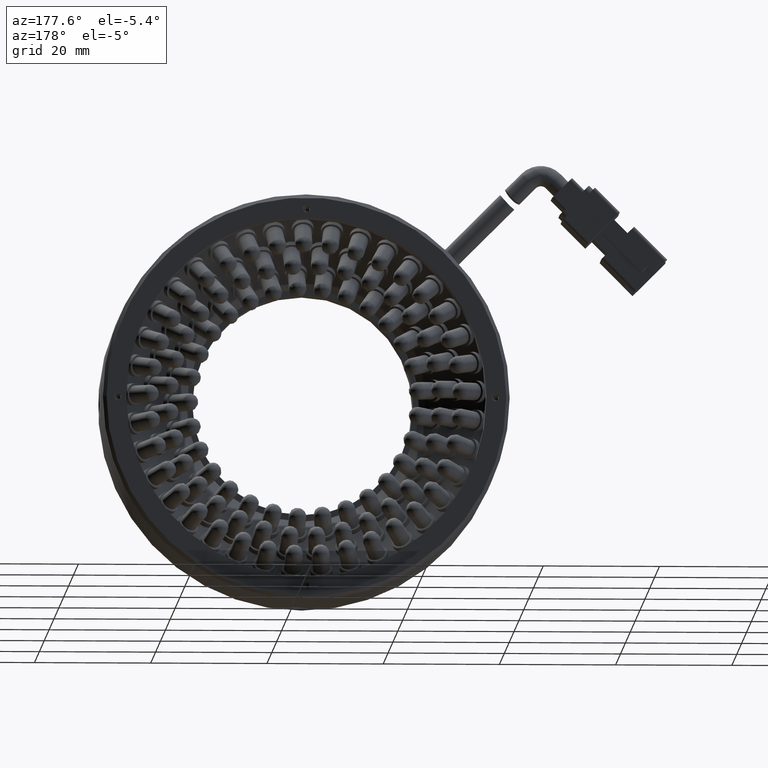
[diagram: clean part render]
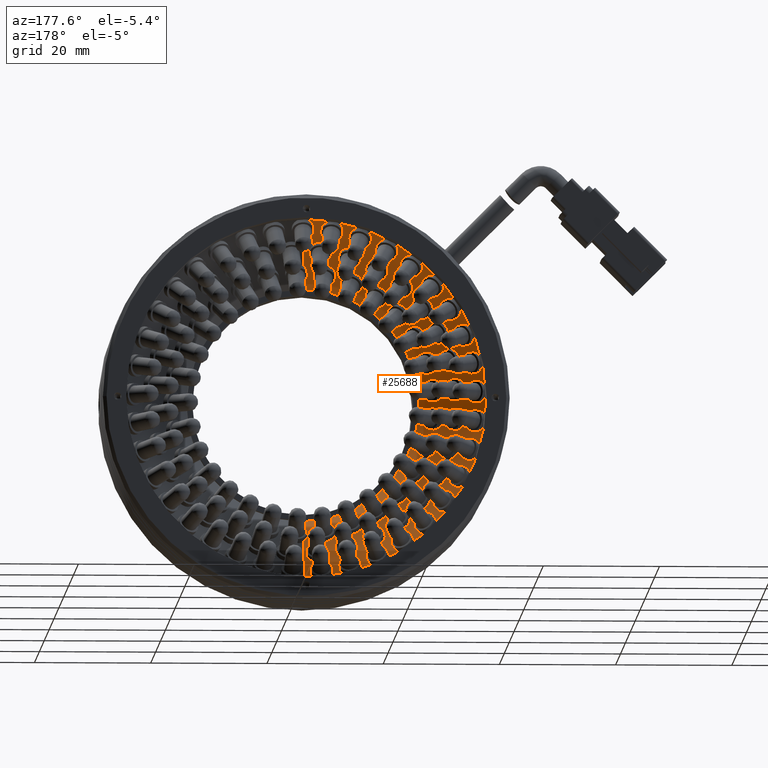
[diagram: same view with one face highlighted and labeled with its STEP entity id]
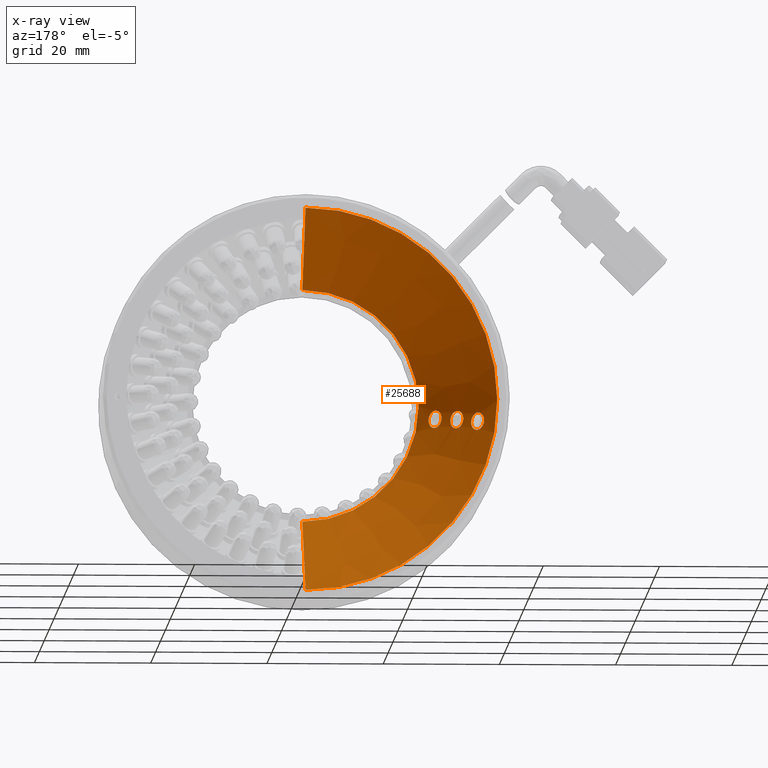
[diagram: x-ray of the same camera — body ghosted, the highlighted face saturated]
A machine part, auxiliary view. The second image highlights one B-rep face of the part: STEP entity #25688.
The next image is the same camera in x-ray: the body ghosted, the highlighted face saturated — about 0% of this face is hidden behind the body in this view.
In plain terms, the highlighted conical surface has half-angle 45 deg.
Its self-contained STEP definition (entity closure, byte-faithful):
#128 = CARTESIAN_POINT ( 'NONE',  ( -28.01908326367941600, 5.874886798443166700, -2.501664204160788600 ) ) ;
#412 = CARTESIAN_POINT ( 'NONE',  ( -29.42814202739572600, 7.200999147125463300, -1.467076150657324200 ) ) ;
#485 = EDGE_CURVE ( 'NONE', #35427, #45216, #60642, .T. ) ;
#1360 = CIRCLE ( 'NONE', #12186, 33.00000000000000000 ) ;
#1465 = CARTESIAN_POINT ( 'NONE',  ( -29.60603472380911000, 7.646457897672905600, -4.083056202841649300 ) ) ;
#1751 = CARTESIAN_POINT ( 'NONE',  ( -28.05137181699154100, 6.043878077482676600, -3.642280062222721200 ) ) ;
#2243 = ORIENTED_EDGE ( 'NONE', *, *, #485, .T. ) ;
#2247 = DIRECTION ( 'NONE',  ( 0.0000000000000000000, -1.051347561198065000E-016, -1.000000000000000000 ) ) ;
#2879 = CARTESIAN_POINT ( 'NONE',  ( -33.44336522947413200, 11.42755711377953500, -3.941097749958742700 ) ) ;
#2887 = CARTESIAN_POINT ( 'NONE',  ( -31.57840938209541200, 9.437869162553740300, -2.710162073757857600 ) ) ;
#3053 = CARTESIAN_POINT ( 'NONE',  ( -25.25889069463905300, 3.341963317403056500, -3.990397044369723600 ) ) ;
#3162 = CARTESIAN_POINT ( 'NONE',  ( -31.89744508146140900, 10.02246797971766900, -4.801698555922583500 ) ) ;
#3170 = CARTESIAN_POINT ( 'NONE',  ( -33.16659305451251100, 10.98355553334837100, -2.268492541284835400 ) ) ;
#3271 = CARTESIAN_POINT ( 'NONE',  ( -24.38760917455244500, 2.241887513611481500, -2.301560160456393800 ) ) ;
#3539 = CARTESIAN_POINT ( 'NONE',  ( -25.76494137189920500, 3.521332085800508200, -1.047149577888178300 ) ) ;
#5622 = VERTEX_POINT ( 'NONE', #74218 ) ;
#6875 = CARTESIAN_POINT ( 'NONE',  ( -28.10567726537878000, 5.935465366437992600, -2.225339834273584800 ) ) ;
#7163 = CARTESIAN_POINT ( 'NONE',  ( -29.61538702772243800, 7.394853228784978000, -1.589005757616505300 ) ) ;
#7319 = CARTESIAN_POINT ( 'NONE',  ( -2.716071020391490600, 13.44869269134615100, -33.00000000000000700 ) ) ;
#7429 = EDGE_CURVE ( 'NONE', #48836, #85072, #9993, .T. ) ;
#8190 = CARTESIAN_POINT ( 'NONE',  ( -29.20978600588955500, 7.295822147131579200, -4.342854923332189400 ) ) ;
#8493 = CARTESIAN_POINT ( 'NONE',  ( -27.95332671491391400, 5.873202266445422200, -3.086363361184057300 ) ) ;
#9483 = CARTESIAN_POINT ( 'NONE',  ( -26.48008095919268700, 4.364661294156624300, -2.693476409665842100 ) ) ;
#9580 = CARTESIAN_POINT ( 'NONE',  ( -33.33960190663746200, 11.35982591810994800, -4.207730450116234700 ) ) ;
#9591 = CARTESIAN_POINT ( 'NONE',  ( -31.71106438712465400, 9.548639603335534100, -2.470347630656525100 ) ) ;
#9776 = CARTESIAN_POINT ( 'NONE',  ( -25.05518007358076800, 3.133054538943564000, -3.942655122749678200 ) ) ;
#9877 = CARTESIAN_POINT ( 'NONE',  ( -31.73165729731529400, 9.834024566112598000, -4.647093995641291100 ) ) ;
#9887 = CARTESIAN_POINT ( 'NONE',  ( -33.35857245996034200, 11.19599761252939500, -2.539935526342817200 ) ) ;
#9983 = CARTESIAN_POINT ( 'NONE',  ( -24.44921119881551200, 2.274871629960953300, -2.015280307594234300 ) ) ;
#9993 = B_SPLINE_CURVE_WITH_KNOTS ( 'NONE', 3,
 ( #21358, #41328, #81494, #68224, #28154, #75001, #34841, #81766, #41611, #1465, #48339, #8190, #55088, #14930, #61795, #21656, #68538, #28434, #75289, #35129, #82069, #41899, #1751, #48623, #8493, #55372 ),
 .UNSPECIFIED., .F., .F.,
 ( 4, 2, 2, 2, 2, 2, 2, 2, 2, 2, 2, 2, 4 ),
 ( 0.0000000000000000000, 0.0002930740204777339800, 0.0005861480409554679500, 0.0008792220614332018700, 0.001172296081910935900, 0.001758444122866402200, 0.002344592163821868300, 0.002637666184299605400, 0.002930740204777342500, 0.003223814225255079500, 0.003516888245732816600, 0.004103036286688296400, 0.004689184327643776600 ),
 .UNSPECIFIED. ) ;
#10271 = CARTESIAN_POINT ( 'NONE',  ( -25.95716323115203700, 3.718217815809340600, -1.150486229931398500 ) ) ;
#10829 = VERTEX_POINT ( 'NONE', #70954 ) ;
#11757 = ORIENTED_EDGE ( 'NONE', *, *, #7429, .T. ) ;
#11831 = CARTESIAN_POINT ( 'NONE',  ( -27.96455778070088300, 5.861903715666897200, -2.888807865044639400 ) ) ;
#12186 = AXIS2_PLACEMENT_3D ( 'NONE', #20433, #67296, #27198 ) ;
#12411 = CARTESIAN_POINT ( 'NONE',  ( -2.716071020391494600, 13.44869269134615100, 33.00000000000000700 ) ) ;
#13617 = CARTESIAN_POINT ( 'NONE',  ( -28.22560439056324800, 6.034543310092948000, -1.976512491367817100 ) ) ;
#13896 = CARTESIAN_POINT ( 'NONE',  ( -29.77883539690149200, 7.568504325954476600, -1.759373894676338600 ) ) ;
#14930 = CARTESIAN_POINT ( 'NONE',  ( -28.85706066666757200, 6.954426081459327900, -4.382088041531965000 ) ) ;
#14952 = CIRCLE ( 'NONE', #23549, 20.00000000000001100 ) ;
#16174 = CARTESIAN_POINT ( 'NONE',  ( -26.41559340952226600, 4.334579906286407400, -2.979439700170547900 ) ) ;
#16284 = CARTESIAN_POINT ( 'NONE',  ( -33.20044632161772600, 11.25559628731189900, -4.446791202640015200 ) ) ;
#16296 = CARTESIAN_POINT ( 'NONE',  ( -31.98914546368681400, 9.800598456485412100, -2.151396479206739700 ) ) ;
#16468 = CARTESIAN_POINT ( 'NONE',  ( -24.86807297406931400, 2.931022768088019900, -3.839877749889348400 ) ) ;
#16569 = CARTESIAN_POINT ( 'NONE',  ( -31.54927324431512000, 9.611928553604162300, -4.376767390991610700 ) ) ;
#16574 = CARTESIAN_POINT ( 'NONE',  ( -33.51961998943672700, 11.40408856987448200, -3.067409852924995100 ) ) ;
#16665 = CARTESIAN_POINT ( 'NONE',  ( -24.54665320837648300, 2.348978330592371500, -1.747944095574627300 ) ) ;
#16913 = VECTOR ( 'NONE', #49844, 999.9999999999998900 ) ;
#16975 = CARTESIAN_POINT ( 'NONE',  ( -26.13028914534190500, 3.899245238396602100, -1.305918350379036400 ) ) ;
#18986 = LINE ( 'NONE', #23444, #16913 ) ;
#20346 = CARTESIAN_POINT ( 'NONE',  ( -28.42767393724751600, 6.215501190854329400, -1.692036362559110400 ) ) ;
#20433 = CARTESIAN_POINT ( 'NONE',  ( -2.716071020391494600, 13.44869269134615100, 0.0000000000000000000 ) ) ;
#20628 = CARTESIAN_POINT ( 'NONE',  ( -29.99248696055222400, 7.807880282528584500, -2.133910360436776200 ) ) ;
#20782 = EDGE_CURVE ( 'NONE', #10829, #56791, #75650, .T. ) ;
#21358 = CARTESIAN_POINT ( 'NONE',  ( -30.09223288798401100, 7.976850201527462000, -2.888808976850003600 ) ) ;
#21656 = CARTESIAN_POINT ( 'NONE',  ( -28.65329934544047300, 6.745579915739334400, -4.334342406142083000 ) ) ;
#21800 = EDGE_CURVE ( 'NONE', #39021, #38356, #18986, .T. ) ;
#22928 = CARTESIAN_POINT ( 'NONE',  ( -26.31197774011261000, 4.266679721737610000, -3.246102452109251900 ) ) ;
#23041 = CARTESIAN_POINT ( 'NONE',  ( -32.91001747395823400, 11.01606169976747300, -4.764307066195859100 ) ) ;
#23051 = CARTESIAN_POINT ( 'NONE',  ( -32.39090638013429000, 10.18833984316764200, -1.962356982055978700 ) ) ;
#23232 = CARTESIAN_POINT ( 'NONE',  ( -24.70279705031742900, 2.742091085321706900, -3.685301890713614800 ) ) ;
#23333 = CARTESIAN_POINT ( 'NONE',  ( -31.40127886739067300, 9.390700894051661900, -3.850813661478162100 ) ) ;
#23341 = CARTESIAN_POINT ( 'NONE',  ( -33.52646239689207900, 11.45267830740728400, -3.459321798819248200 ) ) ;
#23433 = CARTESIAN_POINT ( 'NONE',  ( -24.67742984688036900, 2.461643009922632100, -1.507956543181124600 ) ) ;
#23444 = CARTESIAN_POINT ( 'NONE',  ( -2.716071020391494600, 13.44869269134614600, 33.00000000000000000 ) ) ;
#23549 = AXIS2_PLACEMENT_3D ( 'NONE', #33494, #80481, #40269 ) ;
#23723 = CARTESIAN_POINT ( 'NONE',  ( -26.32452407231837600, 4.109419223406105100, -1.577599851970052900 ) ) ;
#24568 = B_SPLINE_CURVE_WITH_KNOTS ( 'NONE', 3,
 ( #69653, #29556, #76424, #36269, #83169, #43025, #2887, #49743, #9591, #56495, #16296, #63246, #23051, #69941, #29830, #76713, #36543, #83445, #43329, #3170, #50025, #9887, #56793, #16574, #63526, #23341 ),
 .UNSPECIFIED., .F., .F.,
 ( 4, 2, 2, 2, 2, 2, 2, 2, 2, 2, 2, 2, 4 ),
 ( 0.004689083495144353600, 0.004982151444206462200, 0.005275219393268570700, 0.005568287342330679300, 0.005861355291392787900, 0.006447491189517016300, 0.007033627087641245600, 0.007326695036703358500, 0.007619762985765471400, 0.007912830934827582600, 0.008205898883889695500, 0.008792034782013923000, 0.009378170680138147100 ),
 .UNSPECIFIED. ) ;
#25688 = ADVANCED_FACE ( 'NONE', ( #67636, #34064, #51908, #85441 ), #41418, .F. ) ;
#27128 = CARTESIAN_POINT ( 'NONE',  ( -28.80923263624179100, 6.580914022070942300, -1.430618923767120300 ) ) ;
#27198 = DIRECTION ( 'NONE',  ( 0.0000000000000000000, -1.051347561198065000E-016, -1.000000000000000000 ) ) ;
#27401 = CARTESIAN_POINT ( 'NONE',  ( -30.10260110217440800, 7.966419687030017000, -2.691158401637991000 ) ) ;
#28154 = CARTESIAN_POINT ( 'NONE',  ( -30.01050968042187300, 7.950321185872224000, -3.370755326970311700 ) ) ;
#28394 = EDGE_LOOP ( 'NONE', ( #56576, #71348 ) ) ;
#28434 = CARTESIAN_POINT ( 'NONE',  ( -28.46588625501023300, 6.543867905448771600, -4.231536590790422100 ) ) ;
#28626 = VERTEX_POINT ( 'NONE', #31376 ) ;
#29546 = CARTESIAN_POINT ( 'NONE',  ( -33.52646239689207900, 11.45267830740728400, -3.459321798819248200 ) ) ;
#29556 = CARTESIAN_POINT ( 'NONE',  ( -31.40393389580794200, 9.332550256576315200, -3.360580407584973900 ) ) ;
#29718 = CARTESIAN_POINT ( 'NONE',  ( -26.17263168020944500, 4.162627961578628800, -3.485153052648091200 ) ) ;
#29824 = CARTESIAN_POINT ( 'NONE',  ( -32.49756335515410700, 10.63908910240122700, -4.952098552430085100 ) ) ;
#29830 = CARTESIAN_POINT ( 'NONE',  ( -32.66867060039835000, 10.46612088174427100, -1.971797698824531600 ) ) ;
#29931 = CARTESIAN_POINT ( 'NONE',  ( -24.36981795031816800, 2.245991863775949900, -2.497497769189368700 ) ) ;
#29995 = CARTESIAN_POINT ( 'NONE',  ( -24.52116903816339600, 2.519247986775215800, -3.415007542213039500 ) ) ;
#30098 = CARTESIAN_POINT ( 'NONE',  ( -31.39802087014657100, 9.338503133164820700, -3.459320768641271500 ) ) ;
#30197 = CARTESIAN_POINT ( 'NONE',  ( -24.95243994932467800, 2.716665163038003400, -1.188735715504184400 ) ) ;
#30477 = CARTESIAN_POINT ( 'NONE',  ( -26.48899940382902000, 4.314010037575357600, -2.105378886074647000 ) ) ;
#30633 = B_SPLINE_CURVE_WITH_KNOTS ( 'NONE', 3,
 ( #42916, #49638, #9483, #56390, #16174, #63131, #22928, #69828, #29718, #76605, #36444, #83334, #43206, #3053, #49912, #9776, #56675, #16468, #63417, #23232, #70111, #29995, #76889, #36732, #83625, #43485 ),
 .UNSPECIFIED., .F., .F.,
 ( 4, 2, 2, 2, 2, 2, 2, 2, 2, 2, 2, 2, 4 ),
 ( 0.0000000000000000000, 0.0002930838837571808000, 0.0005861677675143616000, 0.0008792516512715425000, 0.001172335535028723200, 0.001758503302543091700, 0.002344671070057459400, 0.002637754953814647500, 0.002930838837571836000, 0.003223922721329023600, 0.003517006605086212100, 0.004103174372600587800, 0.004689342140114963900 ),
 .UNSPECIFIED. ) ;
#31376 = CARTESIAN_POINT ( 'NONE',  ( -26.49751349877059100, 4.360917785284624600, -2.497499267413789700 ) ) ;
#32858 = ORIENTED_EDGE ( 'NONE', *, *, #48508, .T. ) ;
#33494 = CARTESIAN_POINT ( 'NONE',  ( -2.716071020391494600, 0.4486926913459983200, 0.0000000000000000000 ) ) ;
#33801 = CARTESIAN_POINT ( 'NONE',  ( -29.15756188453504200, 6.926740690362270100, -1.390899217639858200 ) ) ;
#34064 = FACE_BOUND ( 'NONE', #76257, .T. ) ;
#34841 = CARTESIAN_POINT ( 'NONE',  ( -29.90730625863897200, 7.882010973099663300, -3.637463736922589100 ) ) ;
#35129 = CARTESIAN_POINT ( 'NONE',  ( -28.30007909762012000, 6.355460051159751000, -4.076902001487286300 ) ) ;
#35427 = VERTEX_POINT ( 'NONE', #83237 ) ;
#35591 = ORIENTED_EDGE ( 'NONE', *, *, #60557, .F. ) ;
#36269 = CARTESIAN_POINT ( 'NONE',  ( -31.45389171925155800, 9.350114011872610900, -3.072333513818881600 ) ) ;
#36444 = CARTESIAN_POINT ( 'NONE',  ( -25.88142976755217400, 3.923880228889425200, -3.802595145940676600 ) ) ;
#36534 = CARTESIAN_POINT ( 'NONE',  ( -32.21867753442303700, 10.36244029600416500, -4.942526104877815700 ) ) ;
#36543 = CARTESIAN_POINT ( 'NONE',  ( -32.86884557506049700, 10.67025964805048200, -2.038232096089959400 ) ) ;
#36732 = CARTESIAN_POINT ( 'NONE',  ( -24.37373605373384000, 2.297522132319070200, -2.889108068951709900 ) ) ;
#36932 = CARTESIAN_POINT ( 'NONE',  ( -25.35197058306175000, 3.106646915686858400, -0.9994896512752514700 ) ) ;
#37226 = CARTESIAN_POINT ( 'NONE',  ( -26.49751349877059100, 4.360917785284624600, -2.497499267413789700 ) ) ;
#38356 = VERTEX_POINT ( 'NONE', #12411 ) ;
#39021 = VERTEX_POINT ( 'NONE', #40404 ) ;
#39283 = EDGE_CURVE ( 'NONE', #56791, #10829, #24568, .T. ) ;
#40269 = DIRECTION ( 'NONE',  ( 0.0000000000000000000, 8.673617379884030500E-017, -1.000000000000000000 ) ) ;
#40284 = CARTESIAN_POINT ( 'NONE',  ( -27.98230676668823900, 5.857841108231871100, -2.692872088767890300 ) ) ;
#40404 = CARTESIAN_POINT ( 'NONE',  ( -2.716071020391494600, 0.4486926913459983200, 20.00000000000001100 ) ) ;
#40579 = CARTESIAN_POINT ( 'NONE',  ( -29.36273290535496400, 7.134166090478451800, -1.438798172445934400 ) ) ;
#41328 = CARTESIAN_POINT ( 'NONE',  ( -30.08704878579663200, 7.982065453838874400, -2.987634170897629300 ) ) ;
#41418 = CONICAL_SURFACE ( 'NONE', #57403, 33.00000000000000000, 0.7853981633974426200 ) ;
#41611 = CARTESIAN_POINT ( 'NONE',  ( -29.76852888598568500, 7.777388163801131100, -3.876581687967640900 ) ) ;
#41720 = CARTESIAN_POINT ( 'NONE',  ( -24.36981795031816800, 2.245991863775949900, -2.497497769189368700 ) ) ;
#41899 = CARTESIAN_POINT ( 'NONE',  ( -28.11756223280062300, 6.133512187233510100, -3.806514765392610100 ) ) ;
#42403 = DIRECTION ( 'NONE',  ( 0.0000000000000000000, -1.000000000000000000, 0.0000000000000000000 ) ) ;
#42870 = VECTOR ( 'NONE', #81690, 999.9999999999998900 ) ;
#42916 = CARTESIAN_POINT ( 'NONE',  ( -26.49751349877059100, 4.360917785284624600, -2.497499267413789700 ) ) ;
#43020 = CARTESIAN_POINT ( 'NONE',  ( -33.46980707908835500, 11.44185710167179200, -3.846218073052764600 ) ) ;
#43025 = CARTESIAN_POINT ( 'NONE',  ( -31.54169450870904300, 9.409463013717223500, -2.796130526269787500 ) ) ;
#43206 = CARTESIAN_POINT ( 'NONE',  ( -25.46800741940171900, 3.547881985770746200, -3.990304007584768000 ) ) ;
#43271 = CARTESIAN_POINT ( 'NONE',  ( -2.716071020391490600, 13.44869269134614600, -33.00000000000000000 ) ) ;
#43319 = CARTESIAN_POINT ( 'NONE',  ( -32.02061594168689900, 10.15617139596161200, -4.876336150010611300 ) ) ;
#43329 = CARTESIAN_POINT ( 'NONE',  ( -33.05541550518000100, 10.86479568739612700, -2.160092470270941000 ) ) ;
#43485 = CARTESIAN_POINT ( 'NONE',  ( -24.36981795031816800, 2.245991863775949900, -2.497497769189368700 ) ) ;
#43700 = CARTESIAN_POINT ( 'NONE',  ( -25.62969088126097700, 3.384509009095337400, -1.008936631138241900 ) ) ;
#43843 = CARTESIAN_POINT ( 'NONE',  ( -2.716071020391494600, 13.44869269134614600, 0.0000000000000000000 ) ) ;
#45216 = VERTEX_POINT ( 'NONE', #7319 ) ;
#46349 = ORIENTED_EDGE ( 'NONE', *, *, #39283, .T. ) ;
#47044 = CARTESIAN_POINT ( 'NONE',  ( -28.04409788792290600, 5.890628835382852200, -2.406622325281271700 ) ) ;
#47254 = EDGE_CURVE ( 'NONE', #38356, #5622, #59508, .T. ) ;
#47334 = CARTESIAN_POINT ( 'NONE',  ( -29.55456539434742100, 7.331431839673603800, -1.542087243733474300 ) ) ;
#47845 = ORIENTED_EDGE ( 'NONE', *, *, #82554, .T. ) ;
#48339 = CARTESIAN_POINT ( 'NONE',  ( -29.47841531595618000, 7.537529216597238100, -4.194157209696227200 ) ) ;
#48508 = EDGE_CURVE ( 'NONE', #39021, #35427, #14952, .T. ) ;
#48623 = CARTESIAN_POINT ( 'NONE',  ( -27.96884440991518200, 5.913054303930654700, -3.280442657478248600 ) ) ;
#48836 = VERTEX_POINT ( 'NONE', #50749 ) ;
#49638 = CARTESIAN_POINT ( 'NONE',  ( -26.49235374372642900, 4.366108627309952100, -2.596330527924044100 ) ) ;
#49738 = CARTESIAN_POINT ( 'NONE',  ( -33.37811794681601900, 11.38641956513504800, -4.121970691507270200 ) ) ;
#49743 = CARTESIAN_POINT ( 'NONE',  ( -31.66288662371357500, 9.507258990095312600, -2.547418979825386600 ) ) ;
#49844 = DIRECTION ( 'NONE',  ( 0.0000000000000000000, 0.7071067811865515700, 0.7071067811865435800 ) ) ;
#49912 = CARTESIAN_POINT ( 'NONE',  ( -25.18893267097128700, 3.271389174592974400, -3.980705248420320300 ) ) ;
#50014 = CARTESIAN_POINT ( 'NONE',  ( -31.83871216234416900, 9.956935738828168100, -4.755016390516956000 ) ) ;
#50025 = CARTESIAN_POINT ( 'NONE',  ( -33.21794150139388100, 11.03938388139246400, -2.330372589065691900 ) ) ;
#50124 = CARTESIAN_POINT ( 'NONE',  ( -24.42429051912432300, 2.259032136276597000, -2.110335868094430200 ) ) ;
#50400 = CARTESIAN_POINT ( 'NONE',  ( -25.83045850150775600, 3.588059454752991600, -1.075440272904947700 ) ) ;
#50749 = CARTESIAN_POINT ( 'NONE',  ( -30.09223288798401100, 7.976850201527462000, -2.888808976850003600 ) ) ;
#51908 = FACE_BOUND ( 'NONE', #70259, .T. ) ;
#52222 = EDGE_CURVE ( 'NONE', #64064, #28626, #62054, .T. ) ;
#53779 = CARTESIAN_POINT ( 'NONE',  ( -28.14197251523002300, 5.964297069803323300, -2.139332251036381000 ) ) ;
#54073 = CARTESIAN_POINT ( 'NONE',  ( -29.72715424512901400, 7.513012766685523800, -1.697462051795112900 ) ) ;
#54615 = AXIS2_PLACEMENT_3D ( 'NONE', #82536, #42403, #2247 ) ;
#55088 = CARTESIAN_POINT ( 'NONE',  ( -29.06601132826993000, 7.160498173152793900, -4.381977731557803700 ) ) ;
#55372 = CARTESIAN_POINT ( 'NONE',  ( -27.96455778070088300, 5.861903715666897200, -2.888807865044639400 ) ) ;
#56083 = CARTESIAN_POINT ( 'NONE',  ( -31.39802087014657100, 9.338503133164820700, -3.459320768641271500 ) ) ;
#56390 = CARTESIAN_POINT ( 'NONE',  ( -26.44189801283231500, 4.349027118801107200, -2.884536115081206100 ) ) ;
#56489 = CARTESIAN_POINT ( 'NONE',  ( -33.25098324583355200, 11.29460363359458500, -4.369993061851015900 ) ) ;
#56495 = CARTESIAN_POINT ( 'NONE',  ( -31.86659738957584100, 9.686567416290762000, -2.263077709976834200 ) ) ;
#56576 = ORIENTED_EDGE ( 'NONE', *, *, #69672, .T. ) ;
#56590 = CARTESIAN_POINT ( 'NONE',  ( -24.37547834544265200, 2.240297365366501000, -2.398721525198301800 ) ) ;
#56675 = CARTESIAN_POINT ( 'NONE',  ( -24.99101462764855000, 3.064966248454909200, -3.914511835946361500 ) ) ;
#56783 = CARTESIAN_POINT ( 'NONE',  ( -31.68261638677215300, 9.775874013344935800, -4.585481780741812200 ) ) ;
#56791 = VERTEX_POINT ( 'NONE', #56083 ) ;
#56793 = CARTESIAN_POINT ( 'NONE',  ( -33.42970014969087300, 11.28068057494742000, -2.704729350631603200 ) ) ;
#56896 = CARTESIAN_POINT ( 'NONE',  ( -24.51052604647137700, 2.319976694560864000, -1.833969394027679100 ) ) ;
#57150 = CARTESIAN_POINT ( 'NONE',  ( -26.01815233225255900, 3.781463538590523800, -1.197422366615450200 ) ) ;
#57403 = AXIS2_PLACEMENT_3D ( 'NONE', #43843, #63750, #70744 ) ;
#59508 = CIRCLE ( 'NONE', #54615, 33.00000000000000000 ) ;
#60473 = CARTESIAN_POINT ( 'NONE',  ( -28.27335295307484100, 6.076356030270624800, -1.899405503200367800 ) ) ;
#60557 = EDGE_CURVE ( 'NONE', #5622, #45216, #1360, .T. ) ;
#60642 = LINE ( 'NONE', #43271, #42870 ) ;
#60755 = CARTESIAN_POINT ( 'NONE',  ( -29.92055609116355400, 7.724019090198884100, -1.969045101210438900 ) ) ;
#61795 = CARTESIAN_POINT ( 'NONE',  ( -28.78711698213827600, 6.883844376190436000, -4.372398271905630900 ) ) ;
#62054 = B_SPLINE_CURVE_WITH_KNOTS ( 'NONE', 3,
 ( #29931, #56590, #3271, #50124, #9983, #56896, #16665, #63630, #23433, #70319, #30197, #77105, #36932, #83845, #43700, #3539, #50400, #10271, #57150, #16975, #63884, #23723, #70611, #30477, #77394, #37226 ),
 .UNSPECIFIED., .F., .F.,
 ( 4, 2, 2, 2, 2, 2, 2, 2, 2, 2, 2, 2, 4 ),
 ( 0.004689342140114963900, 0.004982426383969165400, 0.005275510627823367700, 0.005568594871677569200, 0.005861679115531771500, 0.006447847603240170100, 0.007034016090948568700, 0.007327100334802771900, 0.007620184578656975100, 0.007913268822511178300, 0.008206353066365381500, 0.008792521554073791400, 0.009378690041782199500 ),
 .UNSPECIFIED. ) ;
#63131 = CARTESIAN_POINT ( 'NONE',  ( -26.35048835111996400, 4.293285388206882700, -3.160337429953204300 ) ) ;
#63236 = CARTESIAN_POINT ( 'NONE',  ( -33.03770556966600200, 11.12491966984790400, -4.653224821114847900 ) ) ;
#63246 = CARTESIAN_POINT ( 'NONE',  ( -32.24993204006149500, 10.05019823280965200, -2.001800619429759300 ) ) ;
#63417 = CARTESIAN_POINT ( 'NONE',  ( -24.80950095616656300, 2.865340244422933200, -3.793204552890478100 ) ) ;
#63513 = CARTESIAN_POINT ( 'NONE',  ( -31.48322650742131800, 9.522131759474037300, -4.212564623681377200 ) ) ;
#63526 = CARTESIAN_POINT ( 'NONE',  ( -33.53748202971131300, 11.44158440760366200, -3.261747144112048200 ) ) ;
#63630 = CARTESIAN_POINT ( 'NONE',  ( -24.62990091865398800, 2.419612432470497500, -1.585083470354783800 ) ) ;
#63750 = DIRECTION ( 'NONE',  ( -0.0000000000000000000, 1.000000000000000000, 0.0000000000000000000 ) ) ;
#63884 = CARTESIAN_POINT ( 'NONE',  ( -26.18217320979669800, 3.954532359199630400, -1.367852594577402500 ) ) ;
#64064 = VERTEX_POINT ( 'NONE', #41720 ) ;
#64183 = ORIENTED_EDGE ( 'NONE', *, *, #47254, .F. ) ;
#67218 = CARTESIAN_POINT ( 'NONE',  ( -28.54948730193893900, 6.330268580938591700, -1.580296076989736700 ) ) ;
#67296 = DIRECTION ( 'NONE',  ( 0.0000000000000000000, -1.000000000000000000, 0.0000000000000000000 ) ) ;
#67516 = CARTESIAN_POINT ( 'NONE',  ( -30.08398288791823600, 7.929686052062361800, -2.496735953307901200 ) ) ;
#67636 = FACE_BOUND ( 'NONE', #28394, .T. ) ;
#68224 = CARTESIAN_POINT ( 'NONE',  ( -30.03671900562321900, 7.964861330365146800, -3.275844505291206900 ) ) ;
#68538 = CARTESIAN_POINT ( 'NONE',  ( -28.58905846973035700, 6.677570885727120300, -4.306191921351485900 ) ) ;
#69644 = CARTESIAN_POINT ( 'NONE',  ( -33.52095258481815400, 11.45822525294419200, -3.558109048436958900 ) ) ;
#69653 = CARTESIAN_POINT ( 'NONE',  ( -31.39802087014657100, 9.338503133164820700, -3.459320768641271500 ) ) ;
#69672 = EDGE_CURVE ( 'NONE', #28626, #64064, #30633, .T. ) ;
#69828 = CARTESIAN_POINT ( 'NONE',  ( -26.22326604847269800, 4.201538436257470400, -3.408364970008328500 ) ) ;
#69929 = CARTESIAN_POINT ( 'NONE',  ( -32.64133001116720600, 10.77441666875718300, -4.912981299983012900 ) ) ;
#69941 = CARTESIAN_POINT ( 'NONE',  ( -32.59865100116816400, 10.39561926039739600, -1.962102465250005900 ) ) ;
#70111 = CARTESIAN_POINT ( 'NONE',  ( -24.65394839107752000, 2.683752291482336200, -3.623700201135526400 ) ) ;
#70213 = CARTESIAN_POINT ( 'NONE',  ( -31.38619482812978500, 9.350408876973169500, -3.656801335355827700 ) ) ;
#70259 = EDGE_LOOP ( 'NONE', ( #70271, #46349 ) ) ;
#70271 = ORIENTED_EDGE ( 'NONE', *, *, #20782, .T. ) ;
#70319 = CARTESIAN_POINT ( 'NONE',  ( -24.83108706907585600, 2.601443489593826500, -1.300524490698876700 ) ) ;
#70611 = CARTESIAN_POINT ( 'NONE',  ( -26.39686758757648000, 4.192851270175975900, -1.742501851352672000 ) ) ;
#70744 = DIRECTION ( 'NONE',  ( 0.0000000000000000000, 0.0000000000000000000, 1.000000000000000000 ) ) ;
#70954 = CARTESIAN_POINT ( 'NONE',  ( -33.52646239689207900, 11.45267830740728400, -3.459321798819248200 ) ) ;
#71348 = ORIENTED_EDGE ( 'NONE', *, *, #52222, .T. ) ;
#73714 = CARTESIAN_POINT ( 'NONE',  ( -27.96455778070088300, 5.861903715666897200, -2.888807865044639400 ) ) ;
#73993 = CARTESIAN_POINT ( 'NONE',  ( -28.94989392160665200, 6.719374298220328600, -1.391151944788593400 ) ) ;
#74218 = CARTESIAN_POINT ( 'NONE',  ( -35.71607102039149600, 13.44869269134615100, 4.049993997748621200E-015 ) ) ;
#74277 = CARTESIAN_POINT ( 'NONE',  ( -30.09223288798401100, 7.976850201527462000, -2.888808976850003600 ) ) ;
#75001 = CARTESIAN_POINT ( 'NONE',  ( -29.94565873127809800, 7.908774276029609100, -3.551680886866948900 ) ) ;
#75289 = CARTESIAN_POINT ( 'NONE',  ( -28.40715334708642100, 6.478341933624960800, -4.184845606348783800 ) ) ;
#75650 = B_SPLINE_CURVE_WITH_KNOTS ( 'NONE', 3,
 ( #29546, #69644, #83156, #43020, #2879, #49738, #9580, #56489, #16284, #63236, #23041, #69929, #29824, #76706, #36534, #83435, #43319, #3162, #50014, #9877, #56783, #16569, #63513, #23333, #70213, #30098 ),
 .UNSPECIFIED., .F., .F.,
 ( 4, 2, 2, 2, 2, 2, 2, 2, 2, 2, 2, 2, 4 ),
 ( 0.0000000000000000000, 0.0002930677184465275800, 0.0005861354368930551500, 0.0008792031553395827300, 0.001172270873786110300, 0.001758406310679151600, 0.002344541747572192900, 0.002637609466018713600, 0.002930677184465234300, 0.003223744902911755100, 0.003516812621358276300, 0.004102948058251315600, 0.004689083495144353600 ),
 .UNSPECIFIED. ) ;
#76257 = EDGE_LOOP ( 'NONE', ( #11757, #47845 ) ) ;
#76424 = CARTESIAN_POINT ( 'NONE',  ( -31.41639688171467200, 9.333800737872010700, -3.263461307679371700 ) ) ;
#76605 = CARTESIAN_POINT ( 'NONE',  ( -26.00950667302417300, 4.032340823958555200, -3.691548440535417500 ) ) ;
#76706 = CARTESIAN_POINT ( 'NONE',  ( -32.28861925230100400, 10.43302000739202000, -4.952212459358531000 ) ) ;
#76713 = CARTESIAN_POINT ( 'NONE',  ( -32.80359125220213900, 10.60327186002500200, -2.009971079422532700 ) ) ;
#76889 = CARTESIAN_POINT ( 'NONE',  ( -24.45547532853362700, 2.429129200724346600, -3.250837070625607300 ) ) ;
#77105 = CARTESIAN_POINT ( 'NONE',  ( -25.21151741892331800, 2.967973283796356400, -1.038983867632457400 ) ) ;
#77394 = CARTESIAN_POINT ( 'NONE',  ( -26.50783302153796200, 4.350536088478531100, -2.299836503535559500 ) ) ;
#80481 = DIRECTION ( 'NONE',  ( 0.0000000000000000000, -1.000000000000000000, 0.0000000000000000000 ) ) ;
#80488 = CARTESIAN_POINT ( 'NONE',  ( -27.97017331891063200, 5.856254434929434500, -2.790030023461476500 ) ) ;
#80744 = CARTESIAN_POINT ( 'NONE',  ( -29.22761975497924800, 6.997207922057613800, -1.400601265777739400 ) ) ;
#81494 = CARTESIAN_POINT ( 'NONE',  ( -30.07479228649301100, 7.980602574346429300, -3.084778675087337200 ) ) ;
#81690 = DIRECTION ( 'NONE',  ( 8.659560562354884800E-017, 0.7071067811865515700, -0.7071067811865435800 ) ) ;
#81766 = CARTESIAN_POINT ( 'NONE',  ( -29.81895800242729800, 7.816506824453530700, -3.799767352674809500 ) ) ;
#82069 = CARTESIAN_POINT ( 'NONE',  ( -28.25101924455412600, 6.297332740483542900, -4.015277208791503400 ) ) ;
#82536 = CARTESIAN_POINT ( 'NONE',  ( -2.716071020391494600, 13.44869269134615100, 0.0000000000000000000 ) ) ;
#82554 = EDGE_CURVE ( 'NONE', #85072, #48836, #86094, .T. ) ;
#83156 = CARTESIAN_POINT ( 'NONE',  ( -33.50840356783847800, 11.45706138274978500, -3.655218195600902700 ) ) ;
#83169 = CARTESIAN_POINT ( 'NONE',  ( -31.47929963221166700, 9.365454925114827100, -2.977333648339256300 ) ) ;
#83237 = CARTESIAN_POINT ( 'NONE',  ( -2.716071020391491100, 0.4486926913459983200, -20.00000000000001100 ) ) ;
#83334 = CARTESIAN_POINT ( 'NONE',  ( -25.61206503944994100, 3.682922923897500800, -3.951209711493576500 ) ) ;
#83435 = CARTESIAN_POINT ( 'NONE',  ( -32.08485847575766300, 10.22417826652174700, -4.904480023713950300 ) ) ;
#83445 = CARTESIAN_POINT ( 'NONE',  ( -32.99485252839415500, 10.80110815202430000, -2.113198710938537500 ) ) ;
#83625 = CARTESIAN_POINT ( 'NONE',  ( -24.35849717397845300, 2.257380846601792600, -2.695050014449291700 ) ) ;
#83845 = CARTESIAN_POINT ( 'NONE',  ( -25.55960125826056700, 3.314066646799193700, -0.9992307690275282800 ) ) ;
#85072 = VERTEX_POINT ( 'NONE', #11831 ) ;
#85441 = FACE_OUTER_BOUND ( 'NONE', #86108, .T. ) ;
#85845 = ORIENTED_EDGE ( 'NONE', *, *, #21800, .F. ) ;
#86094 = B_SPLINE_CURVE_WITH_KNOTS ( 'NONE', 3,
 ( #73714, #80488, #40284, #128, #47044, #6875, #53779, #13617, #60473, #20346, #67218, #27128, #73993, #33801, #80744, #40579, #412, #47334, #7163, #54073, #13896, #60755, #20628, #67516, #27401, #74277 ),
 .UNSPECIFIED., .F., .F.,
 ( 4, 2, 2, 2, 2, 2, 2, 2, 2, 2, 2, 2, 4 ),
 ( 0.004689184327643776600, 0.004982258625576380500, 0.005275332923508984300, 0.005568407221441588200, 0.005861481519374192100, 0.006447630115239393700, 0.007033778711104596300, 0.007326853009037197600, 0.007619927306969797100, 0.007913001604902396600, 0.008206075902834997900, 0.008792224498700203900, 0.009378373094565408200 ),
 .UNSPECIFIED. ) ;
#86108 = EDGE_LOOP ( 'NONE', ( #32858, #2243, #35591, #64183, #85845 ) ) ;